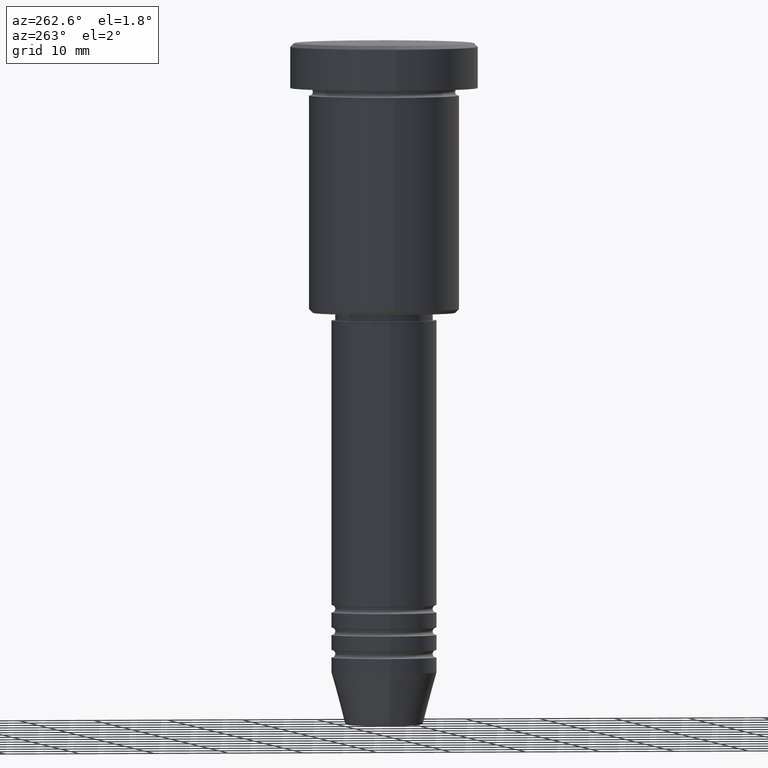
[diagram: clean part render]
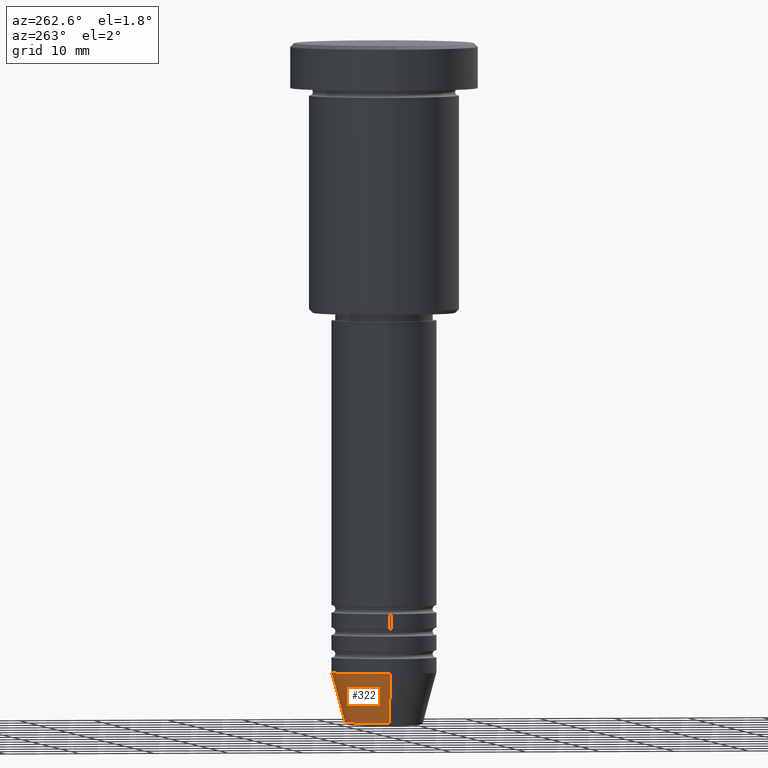
[diagram: same view with one face highlighted and labeled with its STEP entity id]
A machine part, auxiliary view. The second image highlights one B-rep face of the part: STEP entity #322.
In plain terms, the highlighted conical surface has half-angle 15 deg.
Its self-contained STEP definition (entity closure, byte-faithful):
#67 = CONICAL_SURFACE ( 'NONE', #645, 7.000000000000000000, 0.2617993877991501295 ) ;
#82 = DIRECTION ( 'NONE',  ( 0.2588190451025214056, 0.000000000000000000, 0.9659258262890680902 ) ) ;
#120 = CARTESIAN_POINT ( 'NONE',  ( -7.000000000000000000, 8.572527594031473190E-16, -83.99999999999998579 ) ) ;
#127 = EDGE_LOOP ( 'NONE', ( #681, #1007, #1143, #339 ) ) ;
#144 = DIRECTION ( 'NONE',  ( -0.000000000000000000, -0.000000000000000000, 1.000000000000000000 ) ) ;
#162 = LINE ( 'NONE', #244, #829 ) ;
#165 = CARTESIAN_POINT ( 'NONE',  ( 0.000000000000000000, 0.000000000000000000, -83.99999999999998579 ) ) ;
#215 = AXIS2_PLACEMENT_3D ( 'NONE', #528, #436, #1157 ) ;
#244 = CARTESIAN_POINT ( 'NONE',  ( -7.000000000000000000, 8.572527594031473190E-16, -83.99999999999998579 ) ) ;
#322 = ADVANCED_FACE ( 'NONE', ( #1139 ), #67, .T. ) ;
#328 = CARTESIAN_POINT ( 'NONE',  ( 0.000000000000000000, 0.000000000000000000, -83.99999999999998579 ) ) ;
#339 = ORIENTED_EDGE ( 'NONE', *, *, #733, .F. ) ;
#436 = DIRECTION ( 'NONE',  ( -0.000000000000000000, -0.000000000000000000, 1.000000000000000000 ) ) ;
#450 = CIRCLE ( 'NONE', #215, 5.223655072137187716 ) ;
#458 = CARTESIAN_POINT ( 'NONE',  ( -5.223655072137187716, 7.484830028987059188E-16, -90.62940952255125637 ) ) ;
#499 = DIRECTION ( 'NONE',  ( 1.000000000000000000, 0.000000000000000000, 0.000000000000000000 ) ) ;
#505 = EDGE_CURVE ( 'NONE', #576, #1078, #162, .T. ) ;
#528 = CARTESIAN_POINT ( 'NONE',  ( 0.000000000000000000, 0.000000000000000000, -90.62940952255125637 ) ) ;
#533 = DIRECTION ( 'NONE',  ( 1.000000000000000000, 0.000000000000000000, 0.000000000000000000 ) ) ;
#576 = VERTEX_POINT ( 'NONE', #458 ) ;
#598 = DIRECTION ( 'NONE',  ( -0.000000000000000000, -0.000000000000000000, 1.000000000000000000 ) ) ;
#607 = CIRCLE ( 'NONE', #813, 7.000000000000000000 ) ;
#625 = LINE ( 'NONE', #882, #629 ) ;
#629 = VECTOR ( 'NONE', #82, 1000.000000000000000 ) ;
#645 = AXIS2_PLACEMENT_3D ( 'NONE', #165, #144, #533 ) ;
#681 = ORIENTED_EDGE ( 'NONE', *, *, #1063, .T. ) ;
#698 = VERTEX_POINT ( 'NONE', #960 ) ;
#733 = EDGE_CURVE ( 'NONE', #698, #887, #625, .T. ) ;
#813 = AXIS2_PLACEMENT_3D ( 'NONE', #328, #598, #499 ) ;
#824 = CARTESIAN_POINT ( 'NONE',  ( 7.000000000000000000, 0.000000000000000000, -83.99999999999998579 ) ) ;
#829 = VECTOR ( 'NONE', #908, 1000.000000000000000 ) ;
#882 = CARTESIAN_POINT ( 'NONE',  ( 7.000000000000000000, 0.000000000000000000, -83.99999999999998579 ) ) ;
#887 = VERTEX_POINT ( 'NONE', #824 ) ;
#908 = DIRECTION ( 'NONE',  ( -0.2588190451025214056, 3.169619151431772953E-17, 0.9659258262890680902 ) ) ;
#960 = CARTESIAN_POINT ( 'NONE',  ( 5.223655072137187716, 0.000000000000000000, -90.62940952255125637 ) ) ;
#989 = EDGE_CURVE ( 'NONE', #887, #1078, #607, .T. ) ;
#1007 = ORIENTED_EDGE ( 'NONE', *, *, #505, .T. ) ;
#1063 = EDGE_CURVE ( 'NONE', #698, #576, #450, .T. ) ;
#1078 = VERTEX_POINT ( 'NONE', #120 ) ;
#1139 = FACE_OUTER_BOUND ( 'NONE', #127, .T. ) ;
#1143 = ORIENTED_EDGE ( 'NONE', *, *, #989, .F. ) ;
#1157 = DIRECTION ( 'NONE',  ( 1.000000000000000000, 0.000000000000000000, 0.000000000000000000 ) ) ;